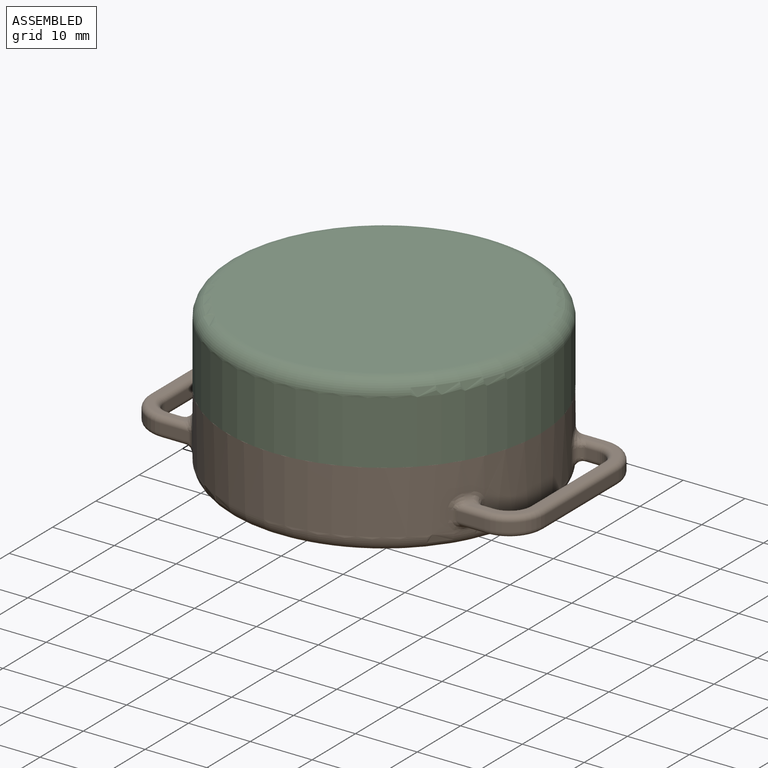
[diagram: assembled view]
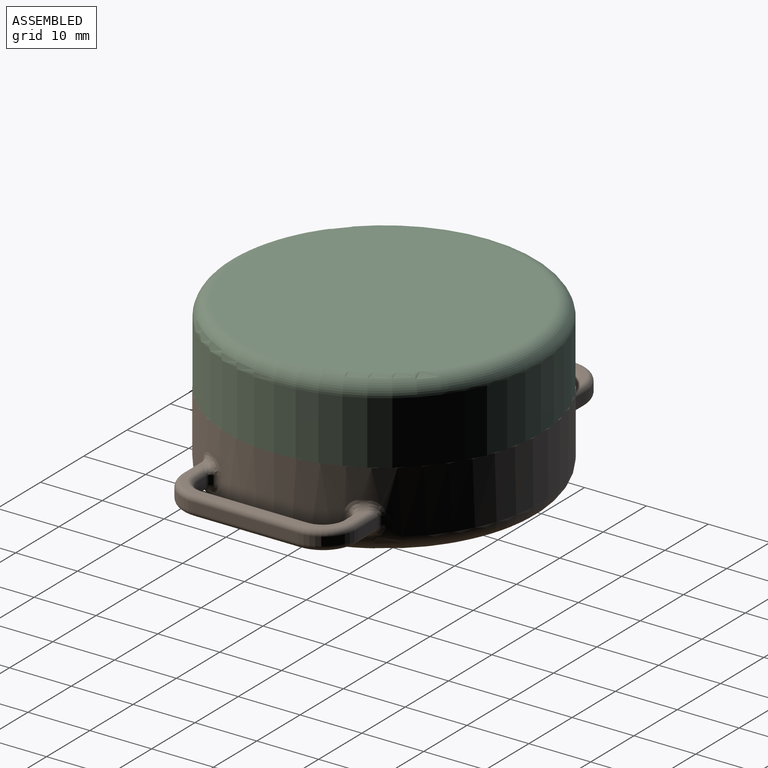
[diagram: assembled view, second angle]
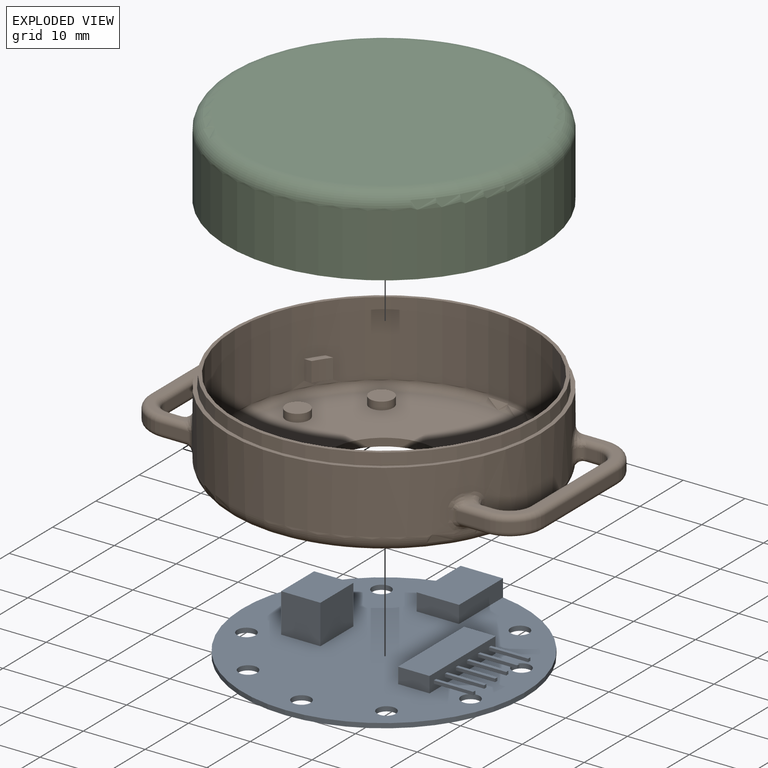
[diagram: exploded view]
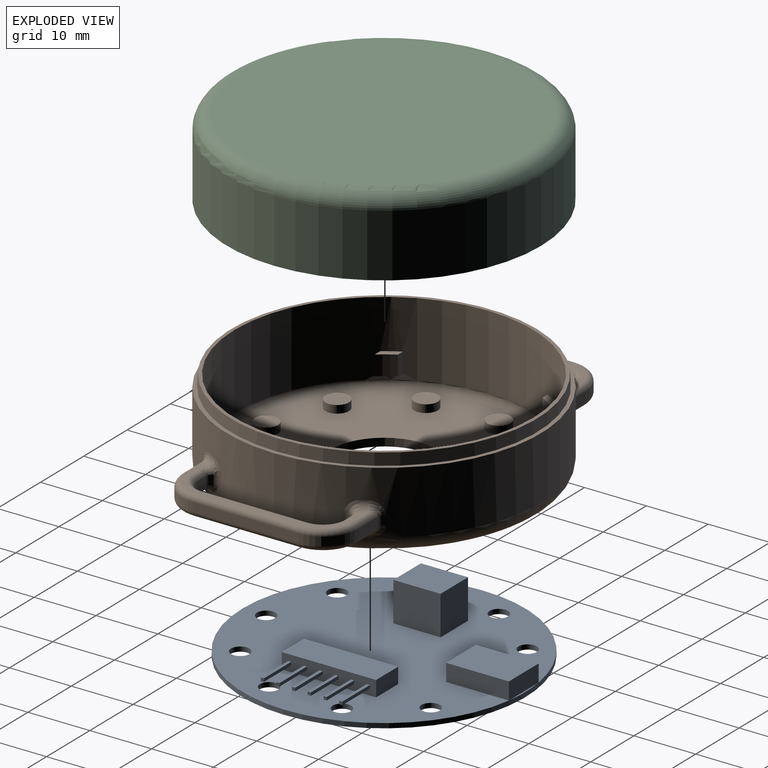
[diagram: exploded view, second angle]
ASSEMBLY  parts=3 mates=5
PART A: 58 faces, bbox 45.7x45.7x7.1 mm
  f0: plane 6.35x0.51mm, normal (-1,0,0), area 3.2mm2, adj f1,f3,f4,f45
  f1: plane 6.35x0.51mm, normal (0,0,1), area 3.2mm2, adj f0,f2,f4,f45
  f2: plane 6.35x0.51mm, normal (1,0,0), area 3.2mm2, adj f1,f3,f4,f45
  f3: plane 6.35x0.51mm, normal (0,0,-1), area 3.2mm2, adj f0,f2,f4,f45
  f4: plane 0.51x0.51mm, normal (0,1,0), area 0.3mm2, adj f0,f1,f2,f3
  f5: plane 6.35x0.51mm, normal (-1,0,0), area 3.2mm2, adj f6,f8,f9,f45
  f6: plane 6.35x0.51mm, normal (0,0,1), area 3.2mm2, adj f5,f7,f9,f45
  f7: plane 6.35x0.51mm, normal (1,0,0), area 3.2mm2, adj f6,f8,f9,f45
  f8: plane 6.35x0.51mm, normal (0,0,-1), area 3.2mm2, adj f5,f7,f9,f45
  f9: plane 0.51x0.51mm, normal (0,1,0), area 0.3mm2, adj f5,f6,f7,f8
  f10: plane 6.35x0.51mm, normal (-1,0,0), area 3.2mm2, adj f11,f13,f14,f45
  f11: plane 6.35x0.51mm, normal (0,0,1), area 3.2mm2, adj f10,f12,f14,f45
  f12: plane 6.35x0.51mm, normal (1,0,0), area 3.2mm2, adj f11,f13,f14,f45
  f13: plane 6.35x0.51mm, normal (0,0,-1), area 3.2mm2, adj f10,f12,f14,f45
  f14: plane 0.51x0.51mm, normal (0,1,0), area 0.3mm2, adj f10,f11,f12,f13
  f15: plane 6.35x0.51mm, normal (-1,0,0), area 3.2mm2, adj f16,f18,f19,f45
  f16: plane 6.35x0.51mm, normal (0,0,1), area 3.2mm2, adj f15,f17,f19,f45
  f17: plane 6.35x0.51mm, normal (1,0,0), area 3.2mm2, adj f16,f18,f19,f45
  f18: plane 6.35x0.51mm, normal (0,0,-1), area 3.2mm2, adj f15,f17,f19,f45
  f19: plane 0.51x0.51mm, normal (0,1,0), area 0.3mm2, adj f15,f16,f17,f18
  f20: plane 6.35x0.51mm, normal (-1,0,0), area 3.2mm2, adj f21,f23,f24,f45
  f21: plane 6.35x0.51mm, normal (0,0,1), area 3.2mm2, adj f20,f22,f24,f45
  f22: plane 6.35x0.51mm, normal (1,0,0), area 3.2mm2, adj f21,f23,f24,f45
  f23: plane 6.35x0.51mm, normal (0,0,-1), area 3.2mm2, adj f20,f22,f24,f45
  f24: plane 0.51x0.51mm, normal (0,1,0), area 0.3mm2, adj f20,f21,f22,f23
  f25: plane 45.72x45.46mm, normal (0,0,1), area 1381.4mm2, adj f27,f29,f30,f31,f32,f33,f34,f35
  f26: plane 6.86x0.26mm, normal (0,0,1), area 1.2mm2, adj f27,f41
  f27: cylinder r=22.86mm len=45.72mm, axis (0,0,-1), area 109.4mm2, adj f25,f26,f28
  f28: plane 45.72x45.72mm, normal (0,0,-1), area 1578.1mm2, adj f27,f29,f30,f31,f32,f33,f34,f35
  f29: cylinder r=1.5mm len=3mm, axis (0,0,1), area 7.2mm2, adj f25,f28
  f30: cylinder r=1.5mm len=3mm, axis (0,0,1), area 7.2mm2, adj f25,f28
  f31: cylinder r=1.5mm len=3mm, axis (0,0,1), area 7.2mm2, adj f25,f28
  f32: cylinder r=1.5mm len=3mm, axis (0,0,1), area 7.2mm2, adj f25,f28
  f33: cylinder r=1.5mm len=3mm, axis (0,0,1), area 7.2mm2, adj f25,f28
  f34: cylinder r=1.5mm len=3mm, axis (0,0,1), area 7.2mm2, adj f25,f28
  f35: cylinder r=1.5mm len=3mm, axis (0,0,1), area 7.2mm2, adj f25,f28
  f36: cylinder r=1.5mm len=3mm, axis (0,0,1), area 7.2mm2, adj f25,f28
  f37: cylinder r=1.5mm len=3mm, axis (0,0,1), area 7.2mm2, adj f25,f28
  f38: plane 10.16x2.79mm, normal (0,-1,0), area 28.4mm2, adj f25,f39,f41,f42
  f39: plane 6.86x2.79mm, normal (1,0,0), area 19.2mm2, adj f25,f38,f40,f42
  f40: plane 10.16x2.79mm, normal (0,1,0), area 28.4mm2, adj f25,f39,f41,f42
  f41: plane 6.86x2.79mm, normal (-1,0,0), area 19.2mm2, adj f26,f38,f40,f42
  f42: plane 10.16x6.86mm, normal (0,0,1), area 69.7mm2, adj f38,f39,f40,f41
  f43: plane 15.24x2.54mm, normal (0,-1,0), area 38.7mm2, adj f25,f44,f46,f47
  f44: plane 5.08x2.54mm, normal (1,0,0), area 12.9mm2, adj f25,f43,f45,f47
  f45: plane 15.24x2.54mm, normal (0,1,0), area 37.2mm2, adj f0,f1,f2,f3,f5,f6,f7,f8
  f46: plane 5.08x2.54mm, normal (-1,0,0), area 12.9mm2, adj f25,f43,f45,f47
  f47: plane 15.24x5.08mm, normal (0,0,1), area 77.4mm2, adj f43,f44,f45,f46
  f48: plane 6.35x0.51mm, normal (-1,0,0), area 3.2mm2, adj f45,f49,f51,f52
  f49: plane 6.35x0.51mm, normal (0,0,1), area 3.2mm2, adj f45,f48,f50,f52
  f50: plane 6.35x0.51mm, normal (1,0,0), area 3.2mm2, adj f45,f49,f51,f52
  f51: plane 6.35x0.51mm, normal (0,0,-1), area 3.2mm2, adj f45,f48,f50,f52
  f52: plane 0.51x0.51mm, normal (0,1,0), area 0.3mm2, adj f48,f49,f50,f51
  f53: plane 7.62x6.35mm, normal (0,-1,0), area 48.4mm2, adj f25,f54,f56,f57
  f54: plane 6.35x6.35mm, normal (1,0,0), area 40.3mm2, adj f25,f53,f55,f57
  f55: plane 7.62x6.35mm, normal (0,1,0), area 48.4mm2, adj f25,f54,f56,f57
  f56: plane 6.35x6.35mm, normal (-1,0,0), area 40.3mm2, adj f25,f53,f55,f57
  f57: plane 7.62x6.35mm, normal (0,0,1), area 48.4mm2, adj f53,f54,f55,f56
PART B: 153 faces, bbox 64.9x55x14.6 mm
  f0: cylinder r=1.91mm len=3.81mm, axis (0,0,-1), area 15.2mm2, adj f1,f16
  f1: plane 3.81x3.81mm, normal (0,0,1), area 11.4mm2, adj f0
  f2: cylinder r=1.91mm len=3.81mm, axis (0,0,-1), area 15.2mm2, adj f3,f16
  f3: plane 3.81x3.81mm, normal (0,0,1), area 11.4mm2, adj f2
  f4: cylinder r=1.91mm len=3.81mm, axis (0,0,-1), area 15.2mm2, adj f5,f16
  f5: plane 3.81x3.81mm, normal (0,0,1), area 11.4mm2, adj f4
  f6: cylinder r=1.91mm len=3.81mm, axis (0,0,-1), area 15.2mm2, adj f7,f16
  f7: plane 3.81x3.81mm, normal (0,0,1), area 11.4mm2, adj f6
  f8: cylinder r=1.91mm len=3.81mm, axis (0,0,-1), area 15.2mm2, adj f9,f16
  f9: plane 3.81x3.81mm, normal (0,0,1), area 11.4mm2, adj f8
  f10: cylinder r=1.91mm len=3.81mm, axis (0,0,-1), area 15.2mm2, adj f11,f16
  f11: plane 3.81x3.81mm, normal (0,0,1), area 11.4mm2, adj f10
  f12: cylinder r=1.91mm len=3.81mm, axis (0,0,-1), area 15.2mm2, adj f13,f16
  f13: plane 3.81x3.81mm, normal (0,0,1), area 11.4mm2, adj f12
  f14: cylinder r=1.91mm len=3.81mm, axis (0,0,-1), area 15.2mm2, adj f15,f16
  f15: plane 3.81x3.81mm, normal (0,0,1), area 11.4mm2, adj f14
  f16: plane 45.72x45.72mm, normal (0,0,1), area 1308.3mm2, adj f0,f2,f4,f6,f8,f10,f12,f14
  f17: torus R=22.86mm, axis (0,0,1), area 296.7mm2, adj f16,f18
  f18: cylinder r=24.13mm len=48.26mm, axis (0,0,-1), area 1790.9mm2, adj f17,f24,f42,f43,f44,f45,f46,f47
  f19: cylinder r=25.4mm len=50.8mm, axis (0,0,-1), area 1514.5mm2, adj f20,f22,f23,f113,f115,f117,f119,f120
  f20: cylinder r=25.4mm len=1.84mm, axis (0,0,-1), area 0.6mm2, adj f19,f22,f133
  f21: plane 45.72x45.72mm, normal (0,0,-1), area 1410.9mm2, adj f22,f28
  f22: torus R=22.86mm, axis (0,0,1), area 611.9mm2, adj f19,f20,f21,f114,f116,f118,f124,f126
  f23: plane 50.8x50.8mm, normal (0,0,1), area 100.1mm2, adj f19,f25
  f24: plane 49.33x49.33mm, normal (0,0,1), area 82mm2, adj f18,f25
  f25: cone r=24.77mm half-angle=3deg, axis (0,0,-1), area 296.2mm2, adj f23,f24
  f26: cylinder r=1.91mm len=3.81mm, axis (0,0,-1), area 15.2mm2, adj f16,f27
  f27: plane 3.81x3.81mm, normal (0,0,1), area 11.4mm2, adj f26
  f28: cylinder r=8.57mm len=17.15mm, axis (0,0,1), area 68.4mm2, adj f16,f21
  f29: cylinder r=5.71mm len=5.72mm, axis (0,0,1), area 12.5mm2, adj f30,f37,f96,f106
  f30: plane 17.07x1.4mm, normal (1,0,0), area 23.8mm2, adj f29,f31,f95,f105
  f31: cylinder r=5.71mm len=5.72mm, axis (0,0,1), area 12.5mm2, adj f30,f40,f94,f104
  f32: cylinder r=3.17mm len=3.18mm, axis (0,0,1), area 7mm2, adj f33,f39,f101,f111
  f33: plane 17.07x1.4mm, normal (-1,0,0), area 23.8mm2, adj f32,f34,f100,f110
  f34: cylinder r=3.17mm len=3.18mm, axis (0,0,1), area 7mm2, adj f33,f38,f99,f109
  f35: plane 26.72x8.02mm, normal (0,0,1), area 28.2mm2, adj f93,f94,f95,f96,f97,f98,f99,f100
  f36: plane 26.72x8.04mm, normal (0,0,-1), area 28.2mm2, adj f103,f104,f105,f106,f107,f108,f109,f110
  f37: plane 4.59x1.4mm, normal (0,1,0), area 6.4mm2, adj f29,f97,f107,f125
  f38: plane 1.74x1.4mm, normal (0,-1,0), area 2.4mm2, adj f34,f98,f108,f132
  f39: plane 1.74x1.4mm, normal (0,1,0), area 2.4mm2, adj f32,f102,f112,f115
  f40: plane 4.59x1.4mm, normal (0,-1,0), area 6.4mm2, adj f31,f93,f103,f122
  f41: cylinder r=23.11mm len=3.18mm, axis (0,0,1), area 9.8mm2, adj f42,f43,f44,f45
  f42: plane 2.9x2.54mm, normal (0,0,1), area 3.1mm2, adj f18,f41,f44,f45
  f43: plane 2.9x2.54mm, normal (0,0,-1), area 3.1mm2, adj f18,f41,f44,f45
  f44: plane 3.18x1.17mm, normal (0,1,0), area 3.7mm2, adj f18,f41,f42,f43
  f45: plane 3.18x1.27mm, normal (0,-1,0), area 4mm2, adj f18,f41,f42,f43
  f46: plane 2.9x2.54mm, normal (0,0,-1), area 3.1mm2, adj f18,f48,f49,f50
  f47: plane 2.9x2.54mm, normal (0,0,1), area 3.1mm2, adj f18,f48,f49,f50
  f48: plane 3.18x1.17mm, normal (0,-1,0), area 3.7mm2, adj f18,f46,f47,f49
  f49: cylinder r=23.11mm len=3.18mm, axis (0,0,1), area 9.8mm2, adj f46,f47,f48,f50
  f50: plane 3.18x1.27mm, normal (0,1,0), area 4mm2, adj f18,f46,f47,f49
  f51: cylinder r=3.17mm len=3.18mm, axis (0,0,1), area 7mm2, adj f52,f59,f86,f91
  f52: plane 17.07x1.4mm, normal (1,0,0), area 23.8mm2, adj f51,f53,f85,f90
  f53: cylinder r=3.17mm len=3.18mm, axis (0,0,1), area 7mm2, adj f52,f62,f84,f89
  f54: cylinder r=5.71mm len=5.72mm, axis (0,0,1), area 12.5mm2, adj f55,f61,f74,f79
  f55: plane 17.07x1.4mm, normal (-1,0,0), area 23.8mm2, adj f54,f56,f75,f80
  f56: cylinder r=5.71mm len=5.72mm, axis (0,0,1), area 12.5mm2, adj f55,f60,f76,f81
  f57: plane 26.72x8.02mm, normal (0,0,1), area 28.2mm2, adj f73,f74,f75,f76,f77,f83,f84,f85
  f58: plane 26.72x8.04mm, normal (0,0,-1), area 28.2mm2, adj f78,f79,f80,f81,f82,f88,f89,f90
  f59: plane 1.74x1.4mm, normal (0,-1,0), area 2.4mm2, adj f51,f87,f92,f145
  f60: plane 4.59x1.4mm, normal (0,1,0), area 6.4mm2, adj f56,f77,f82,f152
  f61: plane 4.59x1.4mm, normal (0,-1,0), area 6.4mm2, adj f54,f73,f78,f142
  f62: plane 1.74x1.4mm, normal (0,1,0), area 2.4mm2, adj f53,f83,f88,f135
  f63: cylinder r=23.11mm len=3.18mm, axis (0,0,1), area 9.8mm2, adj f64,f65,f66,f67
  f64: plane 2.9x2.54mm, normal (0,0,1), area 3.1mm2, adj f18,f63,f66,f67
  f65: plane 2.9x2.54mm, normal (0,0,-1), area 3.1mm2, adj f18,f63,f66,f67
  f66: plane 3.18x1.27mm, normal (0,-1,0), area 4mm2, adj f18,f63,f64,f65
  f67: plane 3.18x1.17mm, normal (0,1,0), area 3.7mm2, adj f18,f63,f64,f65
  f68: plane 2.9x2.54mm, normal (0,0,-1), area 3.1mm2, adj f18,f70,f71,f72
  f69: plane 2.9x2.54mm, normal (0,0,1), area 3.1mm2, adj f18,f70,f71,f72
  f70: plane 3.18x1.27mm, normal (0,1,0), area 4mm2, adj f18,f68,f69,f71
  f71: cylinder r=23.11mm len=3.18mm, axis (0,0,1), area 9.8mm2, adj f68,f69,f70,f72
  f72: plane 3.18x1.17mm, normal (0,-1,0), area 3.7mm2, adj f18,f68,f69,f71
  f73: cylinder r=0.89mm len=4.59mm, axis (-1,0,0), area 5.7mm2, adj f57,f61,f74,f141
  f74: torus R=4.83mm, axis (0,0,-1), area 11.8mm2, adj f54,f57,f73,f75
  f75: cylinder r=0.89mm len=17.07mm, axis (0,1,0), area 23.8mm2, adj f55,f57,f74,f76
  f76: torus R=4.83mm, axis (0,0,-1), area 11.8mm2, adj f56,f57,f75,f77
  f77: cylinder r=0.89mm len=4.59mm, axis (1,0,0), area 5.7mm2, adj f57,f60,f76,f151
  f78: cylinder r=0.89mm len=4.59mm, axis (1,0,0), area 5.7mm2, adj f58,f61,f79,f138,f140
  f79: torus R=4.83mm, axis (0,0,-1), area 11.8mm2, adj f54,f58,f78,f80
  f80: cylinder r=0.89mm len=17.07mm, axis (0,-1,0), area 23.8mm2, adj f55,f58,f79,f81
  f81: torus R=4.83mm, axis (0,0,-1), area 11.8mm2, adj f56,f58,f80,f82
  f82: cylinder r=0.89mm len=4.59mm, axis (-1,0,0), area 5.7mm2, adj f58,f60,f81,f148,f150
  f83: cylinder r=0.89mm len=2.77mm, axis (1,0,0), area 2.9mm2, adj f57,f62,f84,f137
  f84: torus R=4.06mm, axis (0,0,-1), area 7.7mm2, adj f53,f57,f83,f85
  f85: cylinder r=0.89mm len=17.07mm, axis (0,-1,0), area 23.8mm2, adj f52,f57,f84,f86
  f86: torus R=4.06mm, axis (0,0,-1), area 7.7mm2, adj f51,f57,f85,f87
  f87: cylinder r=0.89mm len=2.77mm, axis (-1,0,0), area 2.9mm2, adj f57,f59,f86,f147
  f88: cylinder r=0.89mm len=2.79mm, axis (-1,0,0), area 2.9mm2, adj f58,f62,f89,f133,f134
  f89: torus R=4.06mm, axis (0,0,-1), area 7.7mm2, adj f53,f58,f88,f90
  f90: cylinder r=0.89mm len=17.07mm, axis (0,1,0), area 23.8mm2, adj f52,f58,f89,f91
  f91: torus R=4.06mm, axis (0,0,-1), area 7.7mm2, adj f51,f58,f90,f92
  f92: cylinder r=0.89mm len=2.79mm, axis (1,0,0), area 2.9mm2, adj f58,f59,f91,f143,f144
  f93: cylinder r=0.89mm len=4.59mm, axis (-1,0,0), area 5.7mm2, adj f35,f40,f94,f121
  f94: torus R=4.83mm, axis (0,0,-1), area 11.8mm2, adj f31,f35,f93,f95
  f95: cylinder r=0.89mm len=17.07mm, axis (0,-1,0), area 23.8mm2, adj f30,f35,f94,f96
  f96: torus R=4.83mm, axis (0,0,-1), area 11.8mm2, adj f29,f35,f95,f97
  f97: cylinder r=0.89mm len=4.59mm, axis (1,0,0), area 5.7mm2, adj f35,f37,f96,f127
  f98: cylinder r=0.89mm len=2.77mm, axis (-1,0,0), area 2.9mm2, adj f35,f38,f99,f131
  f99: torus R=4.06mm, axis (0,0,-1), area 7.7mm2, adj f34,f35,f98,f100
  f100: cylinder r=0.89mm len=17.07mm, axis (0,1,0), area 23.8mm2, adj f33,f35,f99,f101
  f101: torus R=4.06mm, axis (0,0,-1), area 7.7mm2, adj f32,f35,f100,f102
  f102: cylinder r=0.89mm len=2.77mm, axis (1,0,0), area 2.9mm2, adj f35,f39,f101,f117
  f103: cylinder r=0.89mm len=4.59mm, axis (1,0,0), area 5.7mm2, adj f36,f40,f104,f118,f120
  f104: torus R=4.83mm, axis (0,0,-1), area 11.8mm2, adj f31,f36,f103,f105
  f105: cylinder r=0.89mm len=17.07mm, axis (0,1,0), area 23.8mm2, adj f30,f36,f104,f106
  f106: torus R=4.83mm, axis (0,0,-1), area 11.8mm2, adj f29,f36,f105,f107
  f107: cylinder r=0.89mm len=4.59mm, axis (-1,0,0), area 5.7mm2, adj f36,f37,f106,f123,f124
  f108: cylinder r=0.89mm len=2.79mm, axis (1,0,0), area 2.9mm2, adj f36,f38,f109,f128,f130
  f109: torus R=4.06mm, axis (0,0,-1), area 7.7mm2, adj f34,f36,f108,f110
  f110: cylinder r=0.89mm len=17.07mm, axis (0,-1,0), area 23.8mm2, adj f33,f36,f109,f111
  f111: torus R=4.06mm, axis (0,0,-1), area 7.7mm2, adj f32,f36,f110,f112
  f112: cylinder r=0.89mm len=2.79mm, axis (-1,0,0), area 2.9mm2, adj f36,f39,f111,f113,f114
  f113: bspline ~2.42x2.29mm, area 3.2mm2, adj f19,f112,f114,f115
  f114: bspline ~2.19x2.12mm, area 1.8mm2, adj f22,f112,f113,f116
  f115: cylinder r=1.27mm len=1.77mm, axis (0,0,-1), area 3.5mm2, adj f19,f39,f113,f117
  f116: torus R=26.66mm, axis (0,0,-1), area 1.6mm2, adj f22,f36,f114,f118
  f117: bspline ~2.92x2.61mm, area 5mm2, adj f19,f102,f115,f119
  f118: bspline ~2.38x2.06mm, area 1.7mm2, adj f22,f103,f116,f120
  f119: torus R=26.67mm, axis (0,0,-1), area 1.7mm2, adj f19,f35,f117,f121
  f120: bspline ~2.37x1.87mm, area 2.2mm2, adj f19,f103,f118,f122
  f121: bspline ~2.72x2.58mm, area 4mm2, adj f19,f93,f119,f122
  f122: cylinder r=1.27mm len=1.4mm, axis (0,0,-1), area 1.7mm2, adj f19,f40,f120,f121
  f123: bspline ~2.32x1.8mm, area 2.2mm2, adj f19,f107,f124,f125
  f124: bspline ~2.38x2.06mm, area 1.7mm2, adj f22,f107,f123,f126
  f125: cylinder r=1.27mm len=1.4mm, axis (0,0,-1), area 1.7mm2, adj f19,f37,f123,f127
  f126: torus R=26.66mm, axis (0,0,-1), area 1.6mm2, adj f22,f36,f124,f128
  f127: bspline ~2.72x2.56mm, area 4mm2, adj f19,f97,f125,f129
  f128: bspline ~2.19x2.12mm, area 1.8mm2, adj f22,f108,f126,f130
  f129: torus R=26.67mm, axis (0,0,-1), area 1.7mm2, adj f19,f35,f127,f131
  f130: bspline ~2.47x2.34mm, area 3.2mm2, adj f19,f108,f128,f132
  f131: bspline ~2.92x2.61mm, area 5mm2, adj f19,f98,f129,f132
  f132: cylinder r=1.27mm len=1.77mm, axis (0,0,-1), area 3.5mm2, adj f19,f38,f130,f131
  f133: bspline ~2.47x2.34mm, area 3.2mm2, adj f20,f88,f134,f135
  f134: bspline ~2.19x2.12mm, area 1.8mm2, adj f22,f88,f133,f136
  f135: cylinder r=1.27mm len=1.77mm, axis (0,0,-1), area 3.5mm2, adj f19,f62,f133,f137
  f136: torus R=26.66mm, axis (0,0,-1), area 1.6mm2, adj f22,f58,f134,f138
  f137: bspline ~2.92x2.61mm, area 5mm2, adj f19,f83,f135,f139
  f138: bspline ~2.38x2.06mm, area 1.7mm2, adj f22,f78,f136,f140
  f139: torus R=26.67mm, axis (0,0,-1), area 1.7mm2, adj f19,f57,f137,f141
  f140: bspline ~2.32x1.8mm, area 2.2mm2, adj f19,f78,f138,f142
  f141: bspline ~2.72x2.56mm, area 4mm2, adj f19,f73,f139,f142
  f142: cylinder r=1.27mm len=1.4mm, axis (0,0,-1), area 1.7mm2, adj f19,f61,f140,f141
  f143: bspline ~2.42x2.29mm, area 3.2mm2, adj f19,f92,f144,f145
  f144: bspline ~2.19x2.12mm, area 1.8mm2, adj f22,f92,f143,f146
  f145: cylinder r=1.27mm len=1.77mm, axis (0,0,-1), area 3.5mm2, adj f19,f59,f143,f147
  f146: torus R=26.66mm, axis (0,0,-1), area 1.6mm2, adj f22,f58,f144,f148
  f147: bspline ~2.92x2.61mm, area 5mm2, adj f19,f87,f145,f149
  f148: bspline ~2.38x2.06mm, area 1.7mm2, adj f22,f82,f146,f150
  f149: torus R=26.67mm, axis (0,0,-1), area 1.7mm2, adj f19,f57,f147,f151
  f150: bspline ~2.37x1.87mm, area 2.2mm2, adj f19,f82,f148,f152
  f151: bspline ~2.72x2.58mm, area 4mm2, adj f19,f77,f149,f152
  f152: cylinder r=1.27mm len=1.4mm, axis (0,0,-1), area 1.7mm2, adj f19,f60,f150,f151
PART C: 9 faces, bbox 55x55x12.7 mm
  f0: plane 45.72x45.72mm, normal (0,0,1), area 1641.7mm2, adj f1
  f1: torus R=22.86mm, axis (0,0,1), area 613.6mm2, adj f0,f2
  f2: cylinder r=25.4mm len=50.8mm, axis (0,0,-1), area 1621.5mm2, adj f1,f3
  f3: plane 50.8x50.8mm, normal (0,0,-1), area 80.3mm2, adj f2,f4
  f4: cone r=24.89mm half-angle=3deg, axis (0,0,-1), area 317.6mm2, adj f3,f5
  f5: plane 49.57x49.57mm, normal (0,0,-1), area 100.7mm2, adj f4,f8
  f6: plane 45.72x45.72mm, normal (0,0,-1), area 1641.7mm2, adj f7
  f7: torus R=22.86mm, axis (0,0,1), area 296.7mm2, adj f6,f8
  f8: cylinder r=24.13mm len=48.26mm, axis (0,0,-1), area 1232.3mm2, adj f5,f7
PLACE A rot(axis=(0,0,-1),90deg) t=(-9.38,10.01,36.18)mm
PLACE B t=(-9.38,10.01,46.34)mm
PLACE C t=(-9.38,10.01,46.34)mm
MATE planar C.f1 <-> B.f28  axis (0,0,-1) through (-9.38,10.01,46.34)mm
MATE cylindrical B.f17 <-> C.f1  axis (0,0,-1) through (-9.38,10.01,41.26)mm
MATE planar A.f28 <-> B.f26  axis (0,0,-1) through (-9.38,10.1,36.18)mm
MATE cylindrical B.f26 <-> A.f29  axis (0,0,-1) through (-9.38,-9.04,35.55)mm
MATE cylindrical A.f37 <-> B.f0  axis (0,0,1) through (1.82,25.42,36.56)mm
